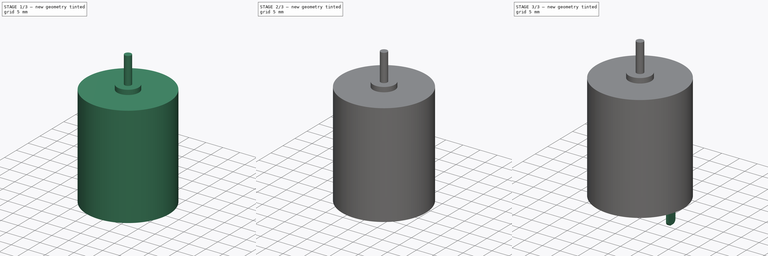
[diagram: build sequence overview — one tinted view per stage of 3, left to right]
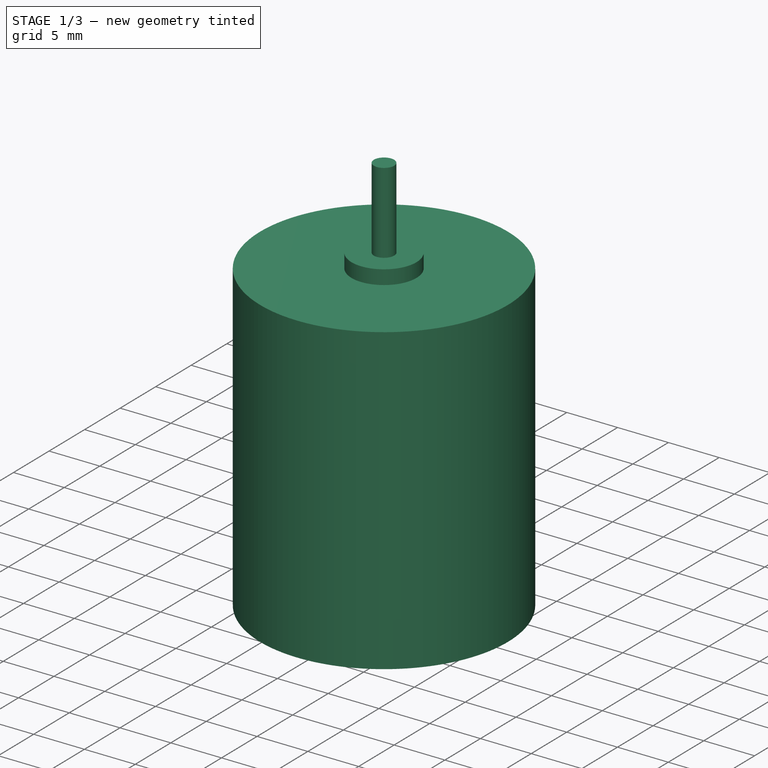
[diagram: stage 1 of 3 — iso view after this stage's code; geometry added in this stage tinted green]
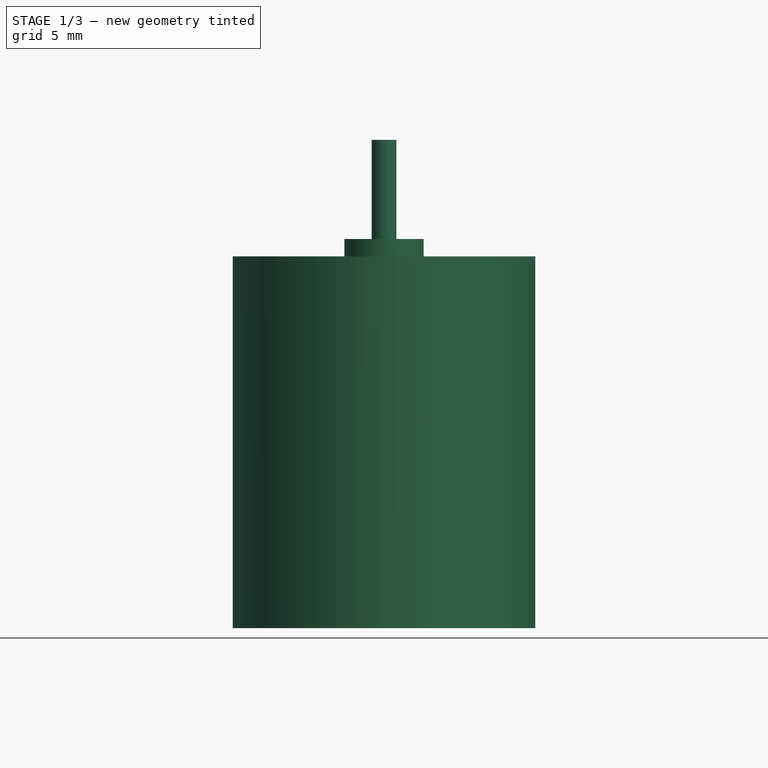
[diagram: stage 1 of 3 — front view after this stage's code; geometry added in this stage tinted green]
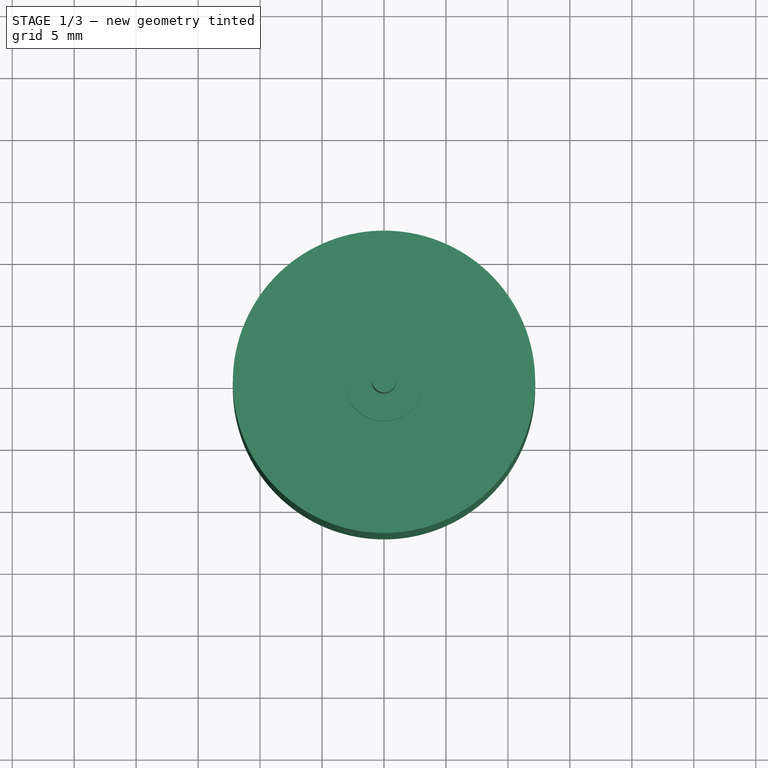
[diagram: stage 1 of 3 — top view after this stage's code; geometry added in this stage tinted green]
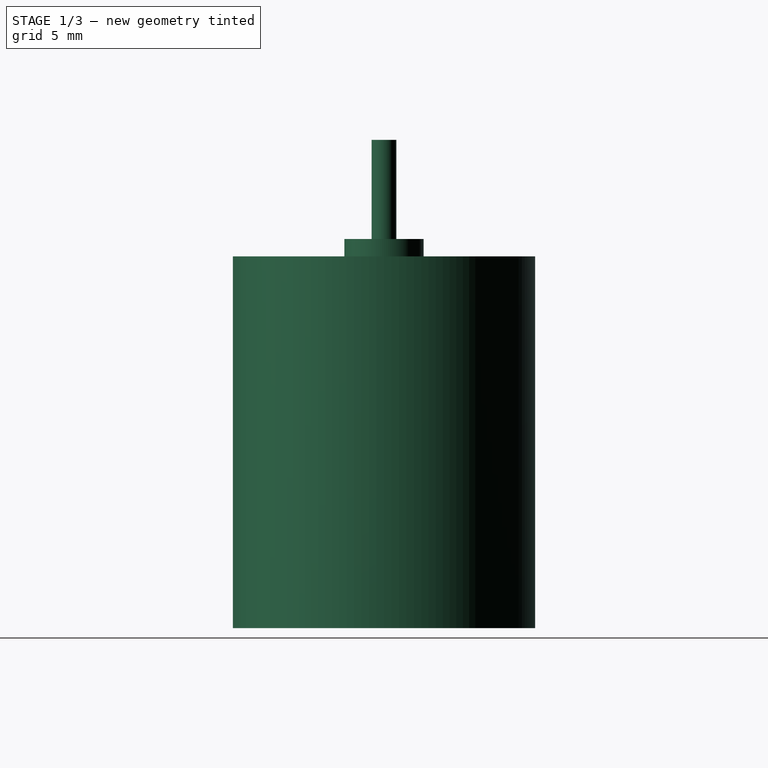
[diagram: stage 1 of 3 — right view after this stage's code; geometry added in this stage tinted green]
FCSTD DOCUMENT  (FreeCAD 0.18R16093 (Git))
Label: Motor_DC
License: All rights reserved
LicenseURL: http://en.wikipedia.org/wiki/All_rights_reserved
objects: Sketcher::SketchObject×7, PartDesign::Pad×6, PartDesign::Pocket×1, PartDesign::Fillet×1, PartDesign::Body×1
note: 23 computed .brp shape members not serialized (recipe doc carries the construction recipe); baked Part::Feature solids carry a one-line shape summary decoded from their .brp

FEATURE [Sketcher::SketchObject] Sketch094
  MapMode = 5
  Support = -> [XY_Plane016]
  sketch-geometry (1):
    g0: Circle CenterX=0 CenterY=0 CenterZ=0 NormalX=0 NormalY=0 NormalZ=1 AngleXU=0 Radius=12.2
  constraints (2):
    c: Radius(g0) = 12.2
    c: Coincident(g0,g-1)
FEATURE [PartDesign::Pad] Pad046
  Length = 30
  Length2 = 100
  Profile = -> Sketch094
  Type = 0
FEATURE [Sketcher::SketchObject] Sketch095
  MapMode = 5
  Placement = pos=(0,0,30) rot=(0,0,1;0rad)
  Support = -> [Pad046]
  sketch-geometry (1):
    g0: Circle CenterX=0 CenterY=0 CenterZ=0 NormalX=0 NormalY=0 NormalZ=1 AngleXU=0 Radius=3.2
  constraints (2):
    c: Radius(g0) = 3.2
    c: Coincident(g0,g-1)
FEATURE [PartDesign::Pad] Pad042
  BaseFeature = -> Pad046
  Length = 1.4
  Length2 = 100
  Profile = -> Sketch095
  Type = 0
FEATURE [Sketcher::SketchObject] Sketch100
  MapMode = 5
  Placement = pos=(0,0,31.4) rot=(0,0,1;0rad)
  Support = -> [Pad042]
  sketch-geometry (1):
    g0: Circle CenterX=0 CenterY=0 CenterZ=0 NormalX=0 NormalY=0 NormalZ=1 AngleXU=0 Radius=1
  constraints (2):
    c: Radius(g0) = 1
    c: Coincident(g0,g-1)
FEATURE [PartDesign::Pad] Pad045
  BaseFeature = -> Pad042
  Length = 8
  Length2 = 100
  Profile = -> Sketch100
  Type = 0
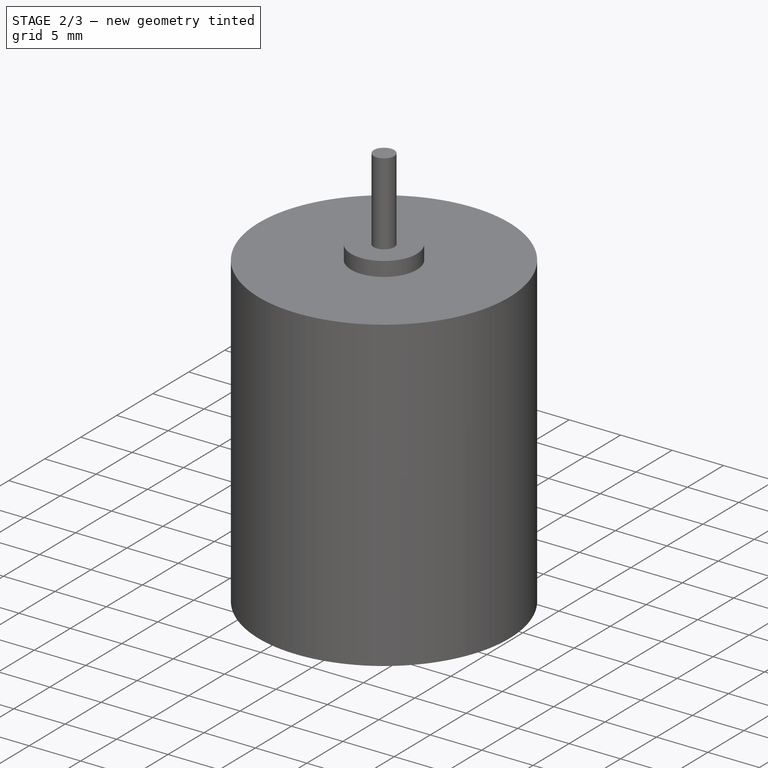
[diagram: stage 2 of 3 — iso view after this stage's code; geometry added in this stage tinted green]
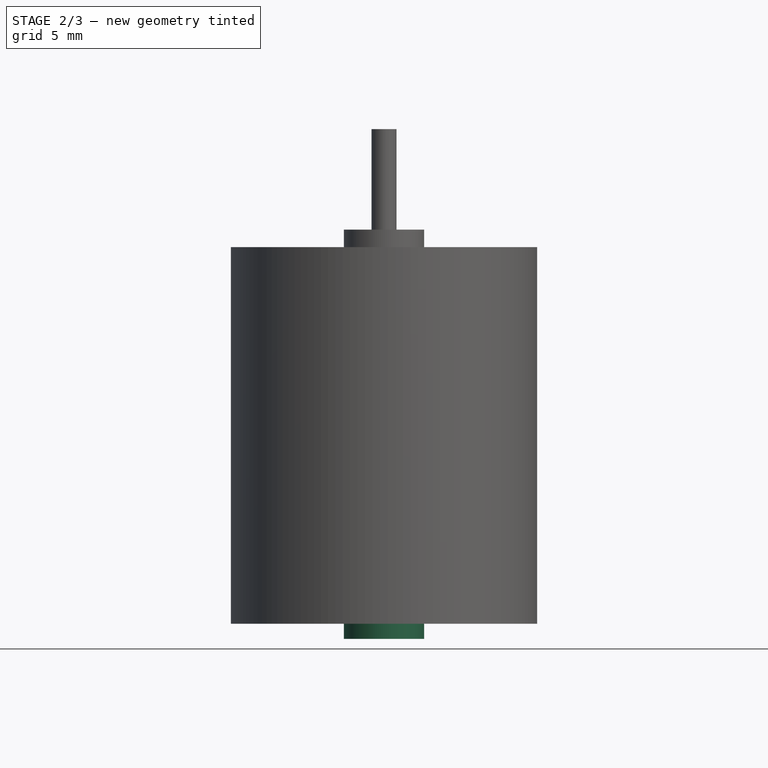
[diagram: stage 2 of 3 — front view after this stage's code; geometry added in this stage tinted green]
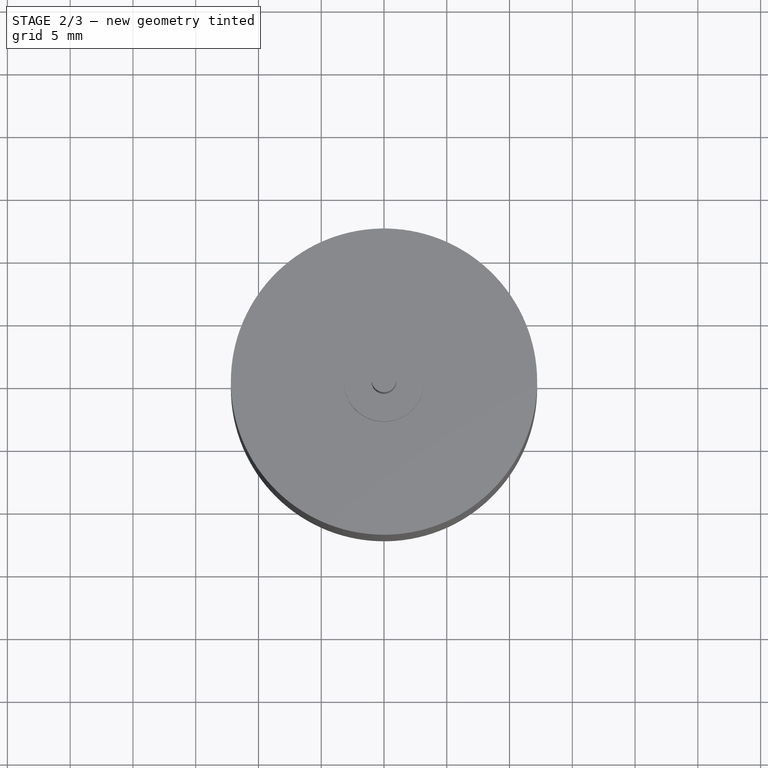
[diagram: stage 2 of 3 — top view after this stage's code; geometry added in this stage tinted green]
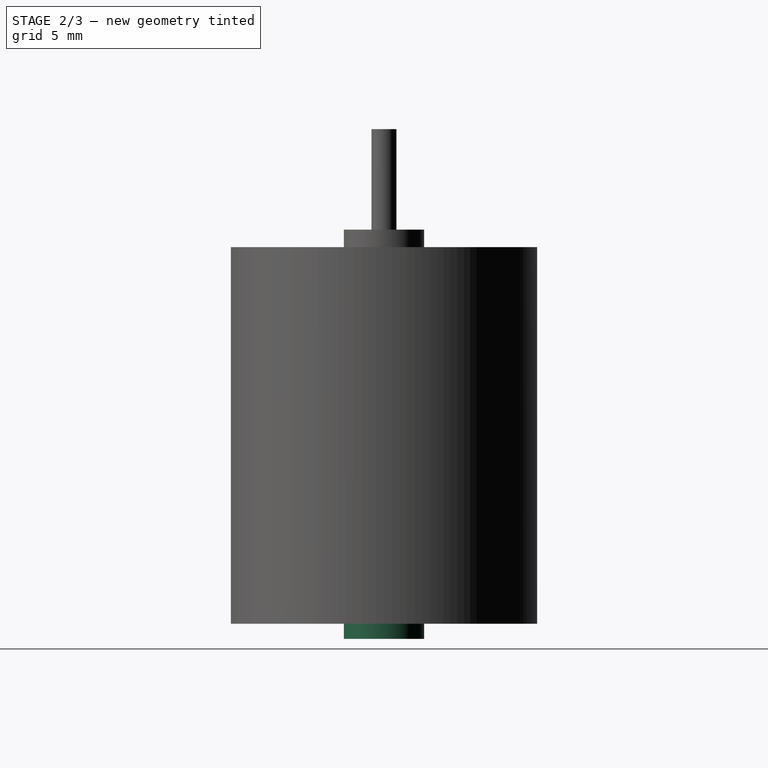
[diagram: stage 2 of 3 — right view after this stage's code; geometry added in this stage tinted green]
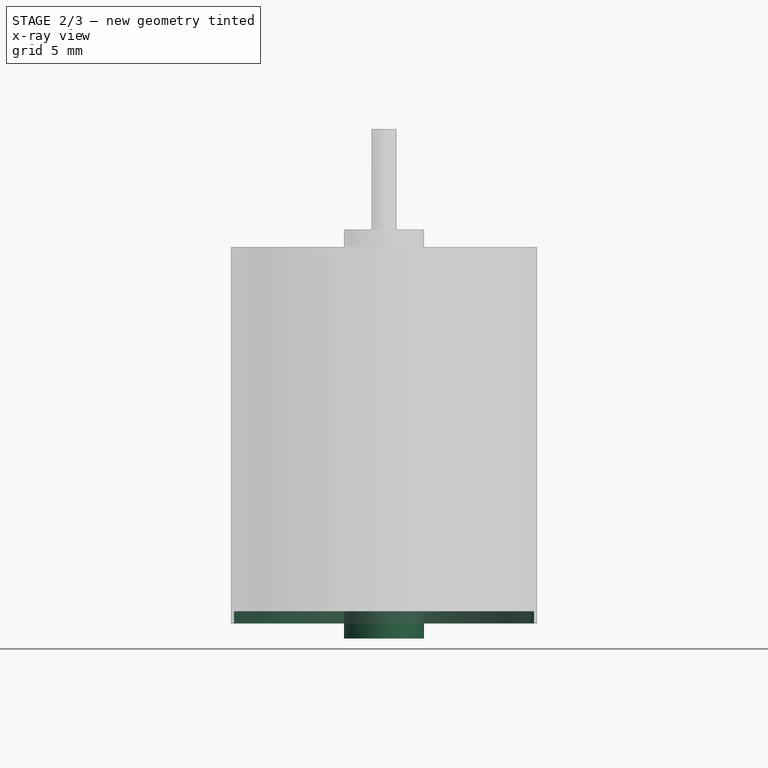
[diagram: stage 2 of 3 — x-ray composite at the front view; earlier geometry ghosted, this stage's added geometry solid]
FEATURE [Sketcher::SketchObject] Sketch098
  MapMode = 5
  Placement = pos=(0,0,0) rot=(1,0,0;3.14159rad)
  Support = -> [Pad045]
  sketch-geometry (1):
    g0: Circle CenterX=0 CenterY=0 CenterZ=0 NormalX=0 NormalY=0 NormalZ=1 AngleXU=0 Radius=11.95
  constraints (2):
    c: Coincident(g0,g-1)
    c: Radius(g0) = 11.95
FEATURE [PartDesign::Pocket] Pocket040
  BaseFeature = -> Pad045
  Length = 1
  Length2 = 100
  Profile = -> Sketch098
  Type = 0
FEATURE [Sketcher::SketchObject] Sketch096
  MapMode = 5
  Placement = pos=(0,0,1) rot=(1,0,0;3.14159rad)
  Support = -> [Pocket040]
  sketch-geometry (1):
    g0: Circle CenterX=0 CenterY=0 CenterZ=0 NormalX=0 NormalY=0 NormalZ=1 AngleXU=0 Radius=3.2
  constraints (2):
    c: Coincident(g0,g-1)
    c: Radius(g0) = 3.2
FEATURE [PartDesign::Pad] Pad047
  BaseFeature = -> Pocket040
  Length = 2.2
  Length2 = 100
  Profile = -> Sketch096
  Type = 0
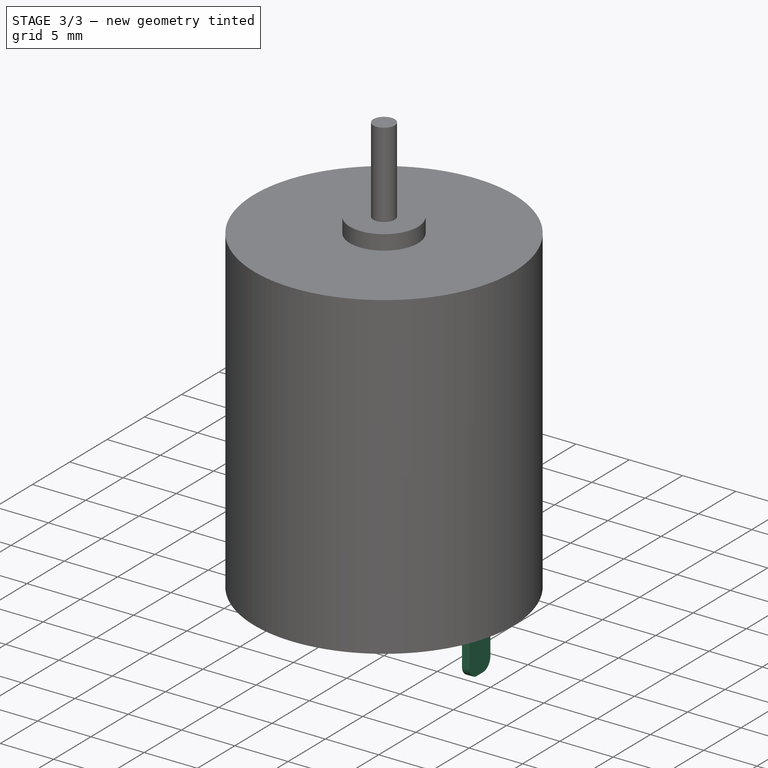
[diagram: stage 3 of 3 — iso view after this stage's code; geometry added in this stage tinted green]
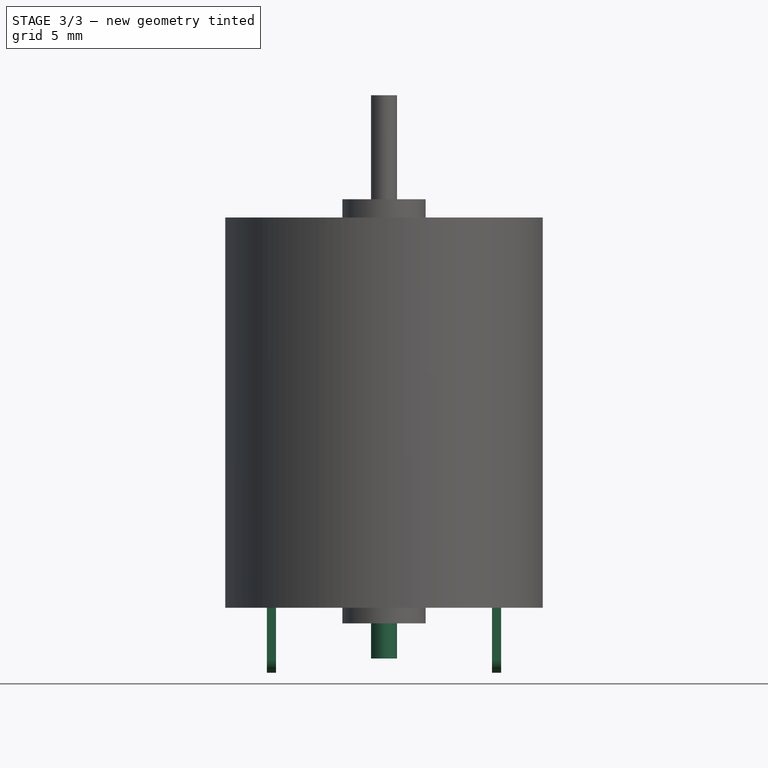
[diagram: stage 3 of 3 — front view after this stage's code; geometry added in this stage tinted green]
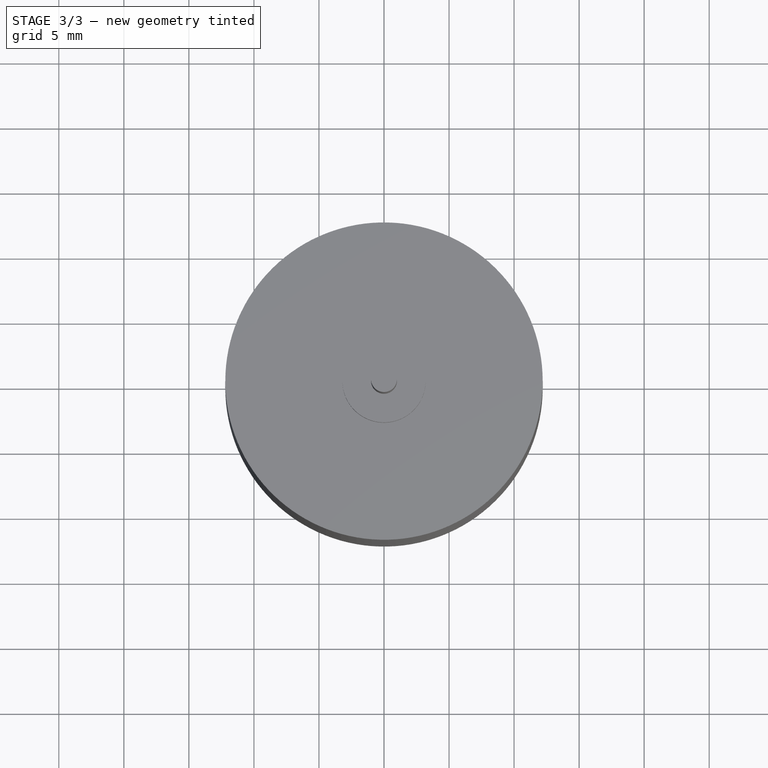
[diagram: stage 3 of 3 — top view after this stage's code; geometry added in this stage tinted green]
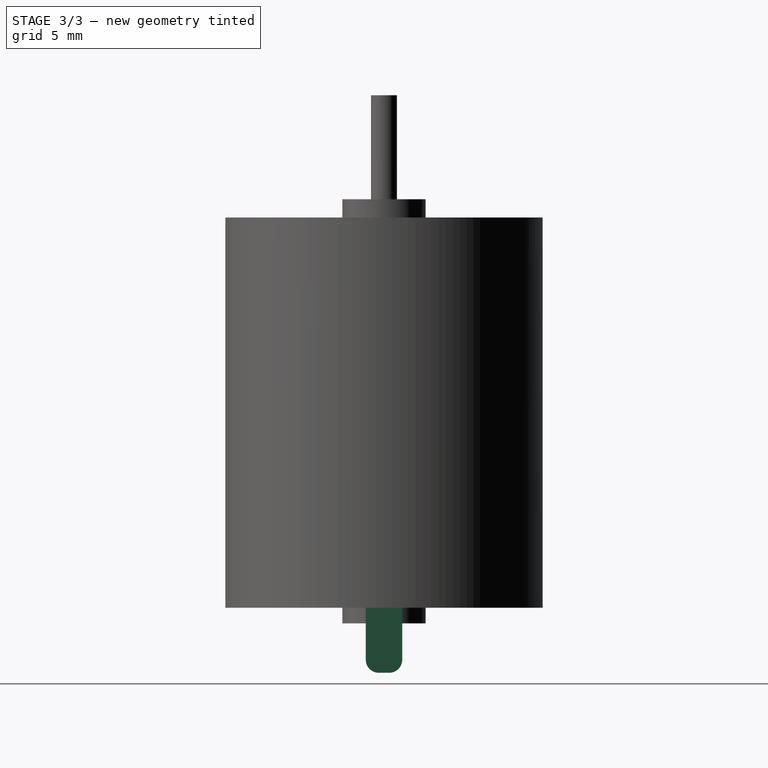
[diagram: stage 3 of 3 — right view after this stage's code; geometry added in this stage tinted green]
FEATURE [Sketcher::SketchObject] Sketch099
  MapMode = 5
  Placement = pos=(0,0,-1.2) rot=(1,0,0;3.14159rad)
  Support = -> [Pad047]
  sketch-geometry (1):
    g0: Circle CenterX=0 CenterY=0 CenterZ=0 NormalX=0 NormalY=0 NormalZ=1 AngleXU=0 Radius=1
  constraints (2):
    c: Coincident(g0,g-1)
    c: Radius(g0) = 1
FEATURE [PartDesign::Pad] Pad044
  BaseFeature = -> Pad047
  Length = 2.7
  Length2 = 100
  Profile = -> Sketch099
  Type = 0
FEATURE [Sketcher::SketchObject] Sketch097
  MapMode = 5
  Placement = pos=(0,0,1) rot=(1,0,0;3.14159rad)
  Support = -> [Pad044]
  sketch-geometry (8):
    g0: LineSegment StartX=-9 StartY=1.4 StartZ=0 EndX=-8.3 EndY=1.4 EndZ=0
    g1: LineSegment StartX=-8.3 StartY=1.4 StartZ=0 EndX=-8.3 EndY=-1.4 EndZ=0
    g2: LineSegment StartX=-8.3 StartY=-1.4 StartZ=0 EndX=-9 EndY=-1.4 EndZ=0
    g3: LineSegment StartX=-9 StartY=-1.4 StartZ=0 EndX=-9 EndY=1.4 EndZ=0
    g4: LineSegment StartX=9 StartY=1.4 StartZ=0 EndX=8.3 EndY=1.4 EndZ=0
    g5: LineSegment StartX=8.3 StartY=1.4 StartZ=0 EndX=8.3 EndY=-1.4 EndZ=0
    g6: LineSegment StartX=8.3 StartY=-1.4 StartZ=0 EndX=9 EndY=-1.4 EndZ=0
    g7: LineSegment StartX=9 StartY=-1.4 StartZ=0 EndX=9 EndY=1.4 EndZ=0
  constraints (18):
    c: Coincident(g0,g1)
    c: Coincident(g1,g2)
    c: Coincident(g2,g3)
    c: Coincident(g3,g0)
    c: Horizontal(g0)
    c: Horizontal(g2)
    c: Vertical(g1)
    c: DistanceX(g0,g0) = 0.7
    c: DistanceY(g1,g1) = 2.8
    c: Symmetric(g2,g0,g-1)
    c: DistanceX(g-2,g1) = -8.3
    c: Coincident(g4,g5)
    c: Coincident(g5,g6)
    c: Coincident(g6,g7)
    c: Coincident(g7,g4)
    c: Horizontal(g4)
    c: Horizontal(g6)
    c: Vertical(g5)
FEATURE [PartDesign::Pad] Pad043
  BaseFeature = -> Pad044
  Length = 6
  Length2 = 100
  Profile = -> Sketch097
  Type = 0
FEATURE [PartDesign::Fillet] Fillet018
  Base = -> Pad043 [Edge27,Edge24,Edge32,Edge36]
  BaseFeature = -> Pad043
  Radius = 1
FEATURE [PartDesign::Body] Body016  label="Motor_DC"
  Group = -> [Sketch094,Pad046,Sketch095,Pad042,Sketch100,Pad045,Sketch098,Pocket040,Sketch096,Pad047,Sketch099,Pad044,Sketch097,Pad043,Fillet018]
  Origin = -> Origin016
  Placement = pos=(15,0,22) rot=(0.57735,0.57735,-0.57735;2.0944rad)
  Tip = -> Fillet018
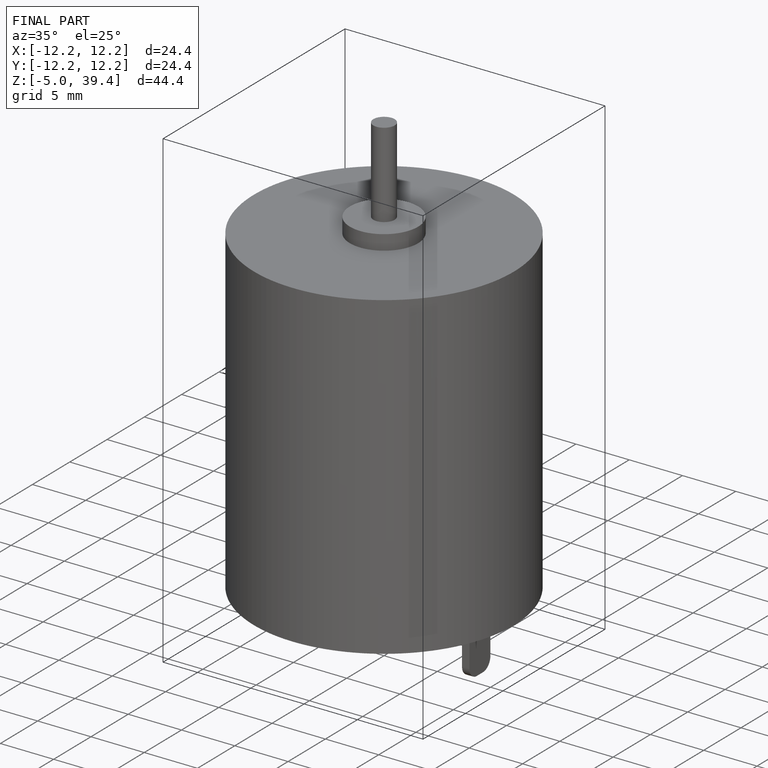
[diagram: finished part — iso view with bounding-box wireframe]
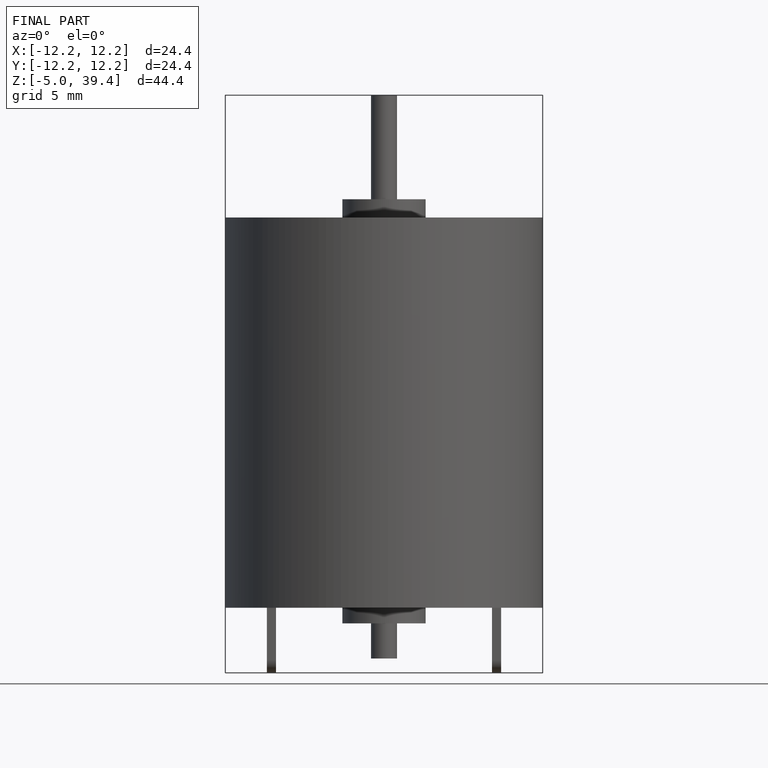
[diagram: finished part — front view with bounding-box wireframe]
